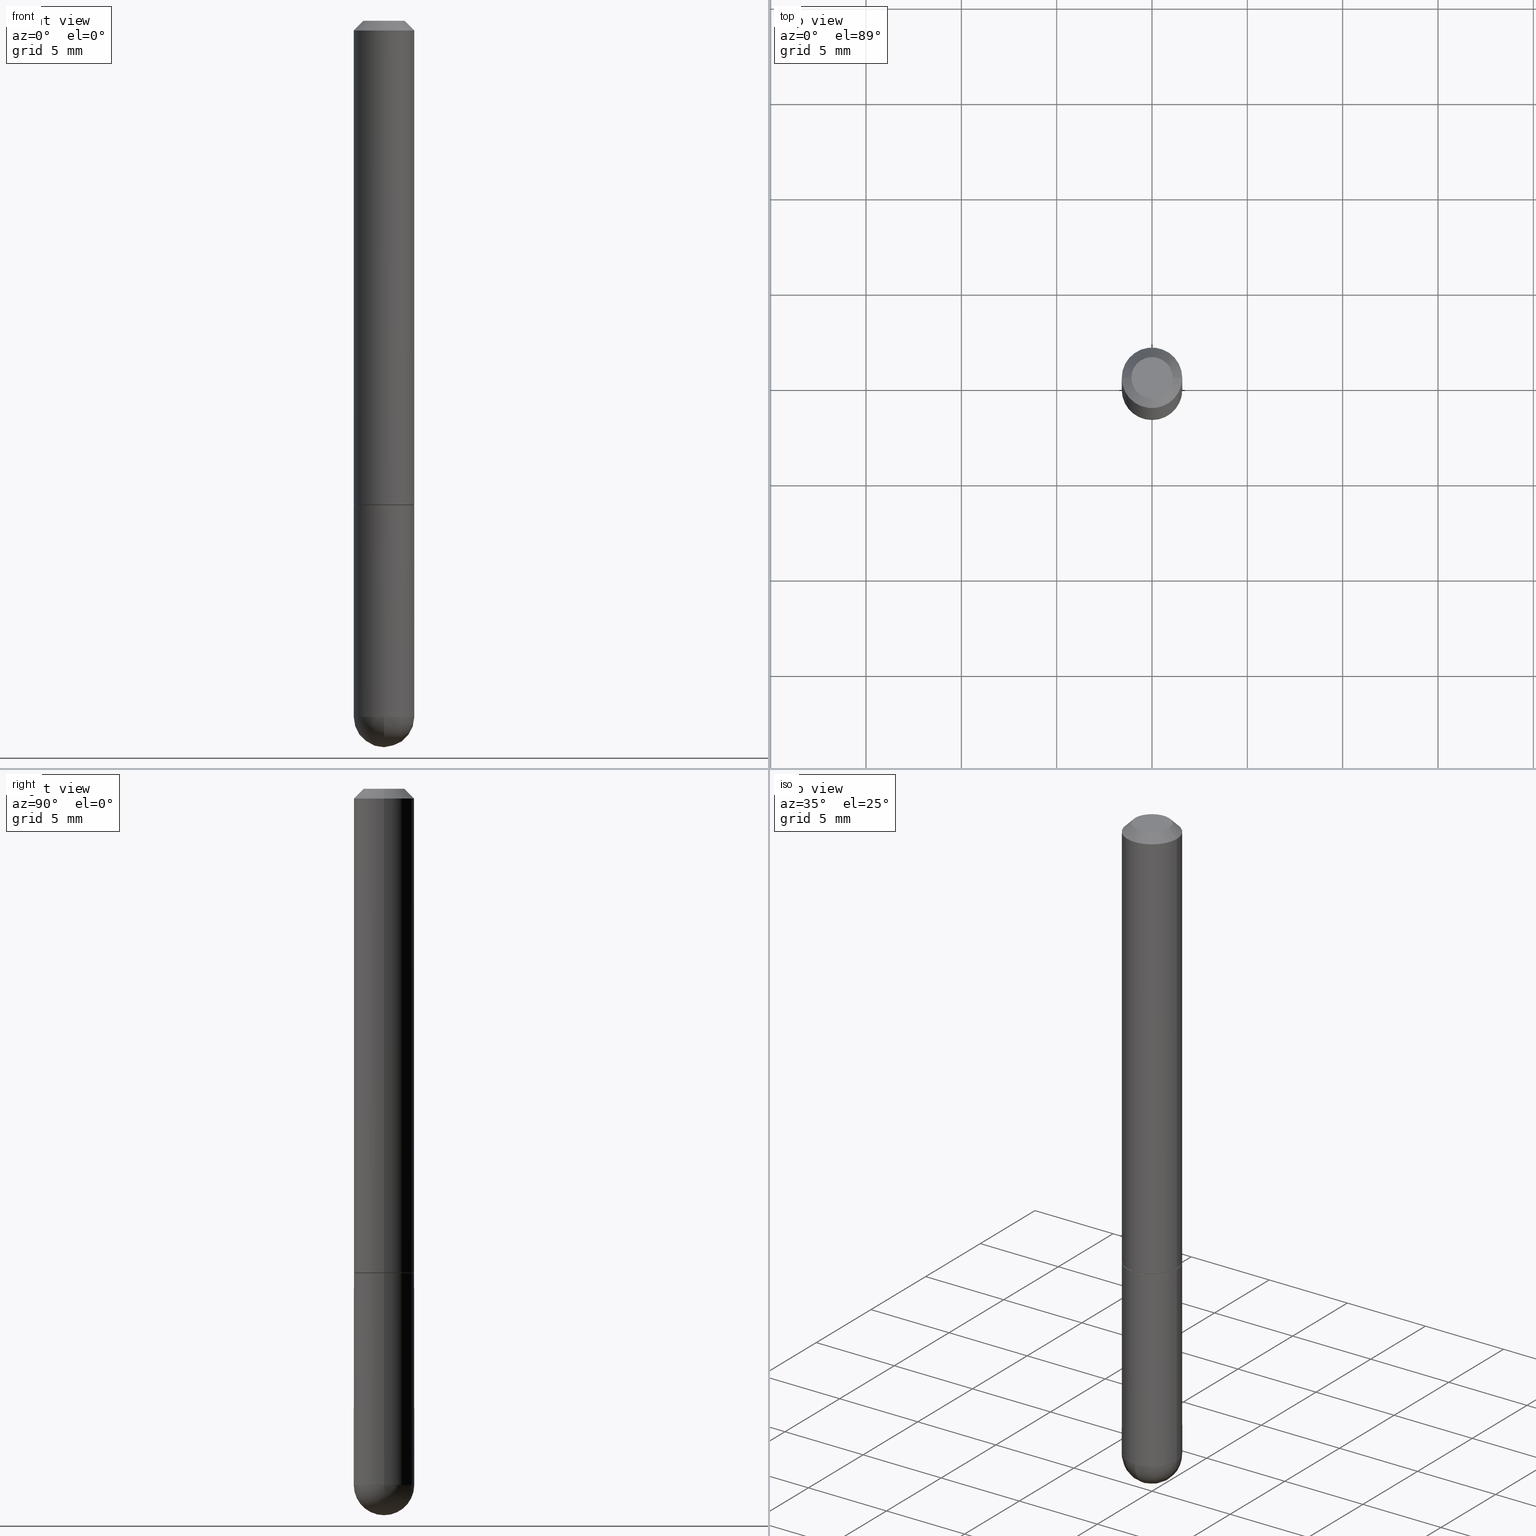
[diagram: canonical four-view strip — front | top / right | iso, engineering-drawing reading convention]
A machine part, canonical four-view strip (front | top / right | iso — engineering-drawing reading convention). The complete STEP part file that produces these views, byte-faithful:
ISO-10303-21;
HEADER;
FILE_DESCRIPTION (( 'STEP AP203' ),
    '1' );
FILE_NAME ('39116.STEP',
    '2024-02-21T19:21:35',
    ( '' ),
    ( '' ),
    'SwSTEP 2.0',
    'SolidWorks 2023',
    '' );
FILE_SCHEMA (( 'CONFIG_CONTROL_DESIGN' ));
ENDSEC;

DATA;
#1 = DIRECTION ( 'NONE',  ( 0.7071067811865465735, -7.319954787623252890E-15, -0.7071067811865484609 ) ) ;
#2 = ORIENTED_EDGE ( 'NONE', *, *, #227, .T. ) ;
#3 = ORGANIZATION ( 'UNSPECIFIED', 'UNSPECIFIED', '' ) ;
#4 = EDGE_LOOP ( 'NONE', ( #288, #234 ) ) ;
#5 = COORDINATED_UNIVERSAL_TIME_OFFSET ( 5, 0, .BEHIND. ) ;
#6 = DIRECTION ( 'NONE',  ( 2.438088387897960049E-29, -3.491481338843145188E-15, -1.000000000000000000 ) ) ;
#7 = PERSON_AND_ORGANIZATION ( #407, #3 ) ;
#8 = FACE_OUTER_BOUND ( 'NONE', #349, .T. ) ;
#9 = AXIS2_PLACEMENT_3D ( 'NONE', #308, #77, #178 ) ;
#10 = APPROVAL_PERSON_ORGANIZATION ( #335, #351, #76 ) ;
#11 = CONICAL_SURFACE ( 'NONE', #388, 0.06149999999999999911, 0.7853981633975507526 ) ;
#12 = CARTESIAN_POINT ( 'NONE',  ( 0.06250000000000004163, -4.364351673553919652E-16, 3.047610484872461972E-30 ) ) ;
#13 = EDGE_CURVE ( 'NONE', #321, #400, #357, .T. ) ;
#14 = CARTESIAN_POINT ( 'NONE',  ( 2.445468806185136877E-29, -3.491481338843145977E-15, -1.000000000000000222 ) ) ;
#15 = PRODUCT ( '39116', '39116', '', ( #246 ) ) ;
#16 = DIRECTION ( 'NONE',  ( 1.000000000000000000, -6.982962677686266711E-15, 4.876176775795935793E-29 ) ) ;
#17 = CIRCLE ( 'NONE', #311, 0.06250000000000000000 ) ;
#18 = AXIS2_PLACEMENT_3D ( 'NONE', #310, #19, #148 ) ;
#19 = DIRECTION ( 'NONE',  ( -2.445468806185136597E-29, 3.491481338843145583E-15, 1.000000000000000000 ) ) ;
#20 = CARTESIAN_POINT ( 'NONE',  ( 0.000000000000000000, 0.000000000000000000, 0.000000000000000000 ) ) ;
#21 = VERTEX_POINT ( 'NONE', #408 ) ;
#22 = LOCAL_TIME ( 14, 21, 35.00000000000000000, #41 ) ;
#23 = ORIENTED_EDGE ( 'NONE', *, *, #215, .T. ) ;
#24 = PRODUCT_RELATED_PRODUCT_CATEGORY ( 'detail', '', ( #15 ) ) ;
#25 = DIRECTION ( 'NONE',  ( 1.000000000000000000, -6.982962677686265922E-15, 4.852736867747402641E-29 ) ) ;
#26 = PLANE ( 'NONE',  #31 ) ;
#27 = DIRECTION ( 'NONE',  ( -2.445468806185136597E-29, 3.491481338843145583E-15, 1.000000000000000000 ) ) ;
#28 = DIRECTION ( 'NONE',  ( -1.000000000000000000, 6.982962677686266711E-15, 0.000000000000000000 ) ) ;
#29 = CONICAL_SURFACE ( 'NONE', #114, 0.06149999999999999911, 0.7853981633975507526 ) ;
#30 = ORIENTED_EDGE ( 'NONE', *, *, #95, .T. ) ;
#31 = AXIS2_PLACEMENT_3D ( 'NONE', #379, #320, #328 ) ;
#32 = DIRECTION ( 'NONE',  ( 6.982962677686265922E-15, 1.000000000000000000, -4.370956789862807739E-15 ) ) ;
#33 = ORIENTED_EDGE ( 'NONE', *, *, #409, .T. ) ;
#34 = CARTESIAN_POINT ( 'NONE',  ( 3.184241630977247611E-29, -5.493186792727071849E-15, -1.437500000000000000 ) ) ;
#35 = ORIENTED_EDGE ( 'NONE', *, *, #284, .T. ) ;
#36 = CARTESIAN_POINT ( 'NONE',  ( 4.364351673554256397E-16, 0.06249999999999480971, -1.437500000000000444 ) ) ;
#37 = ORIENTED_EDGE ( 'NONE', *, *, #65, .T. ) ;
#38 = VECTOR ( 'NONE', #56, 39.37007874015748143 ) ;
#39 = CC_DESIGN_APPROVAL ( #103, ( #144 ) ) ;
#40 = DIRECTION ( 'NONE',  ( -2.445468806185136597E-29, 3.491481338843145583E-15, 1.000000000000000000 ) ) ;
#41 = COORDINATED_UNIVERSAL_TIME_OFFSET ( 5, 0, .BEHIND. ) ;
#42 = ADVANCED_FACE ( 'NONE', ( #97 ), #366, .F. ) ;
#43 = CARTESIAN_POINT ( 'NONE',  ( 2.443023337378951835E-29, -3.487989857504302970E-15, -0.9990000000000002212 ) ) ;
#44 = PERSON_AND_ORGANIZATION_ROLE ( 'design_supplier' ) ;
#45 = CARTESIAN_POINT ( 'NONE',  ( 0.06250000000000013878, -3.924425024859695428E-15, -0.9990000000000002212 ) ) ;
#46 = VECTOR ( 'NONE', #115, 39.37007874015748143 ) ;
#47 = APPROVAL_ROLE ( '' ) ;
#48 =( NAMED_UNIT ( * ) PLANE_ANGLE_UNIT ( ) SI_UNIT ( $, .RADIAN. ) );
#49 = DIRECTION ( 'NONE',  ( -2.445468806185136597E-29, 3.491481338843145583E-15, 1.000000000000000000 ) ) ;
#50 = DIRECTION ( 'NONE',  ( -2.445468806185136597E-29, 3.491481338843145583E-15, 1.000000000000000000 ) ) ;
#51 = EDGE_CURVE ( 'NONE', #217, #195, #212, .T. ) ;
#52 = DIRECTION ( 'NONE',  ( 1.000000000000000000, 0.000000000000000000, 0.000000000000000000 ) ) ;
#53 = CIRCLE ( 'NONE', #395, 0.06250000000000000000 ) ;
#54 = PRODUCT_DEFINITION_FORMATION_WITH_SPECIFIED_SOURCE ( 'ANY', '', #15, .NOT_KNOWN. ) ;
#55 = CARTESIAN_POINT ( 'NONE',  ( 0.000000000000000000, 0.000000000000000000, 0.000000000000000000 ) ) ;
#56 = DIRECTION ( 'NONE',  ( -0.7071067811865465735, 2.468850131082246805E-15, -0.7071067811865484609 ) ) ;
#57 = PERSON_AND_ORGANIZATION_ROLE ( 'design_owner' ) ;
#58 = CARTESIAN_POINT ( 'NONE',  ( -0.06249999999999995143, 3.666055405785281740E-16, -0.02000000000000006981 ) ) ;
#59 = ORIENTED_EDGE ( 'NONE', *, *, #179, .F. ) ;
#60 = AXIS2_PLACEMENT_3D ( 'NONE', #61, #219, #25 ) ;
#61 = CARTESIAN_POINT ( 'NONE',  ( -6.158723344577796643E-45, 8.793024705244639712E-31, 2.518422369159242870E-16 ) ) ;
#62 = APPROVAL_DATE_TIME ( #92, #103 ) ;
#63 = CARTESIAN_POINT ( 'NONE',  ( 3.184241630977247611E-29, -5.493186792727071849E-15, -1.437500000000000000 ) ) ;
#64 = ORIENTED_EDGE ( 'NONE', *, *, #221, .T. ) ;
#65 = EDGE_CURVE ( 'NONE', #195, #160, #53, .T. ) ;
#66 = EDGE_LOOP ( 'NONE', ( #278, #122, #380, #202 ) ) ;
#67 = DIRECTION ( 'NONE',  ( -0.7071067811866199593, 7.493145998870616062E-15, 0.7071067811864750752 ) ) ;
#68 = CC_DESIGN_APPROVAL ( #351, ( #54 ) ) ;
#69 = EDGE_LOOP ( 'NONE', ( #290, #2, #237, #256 ) ) ;
#70 = ORIENTED_EDGE ( 'NONE', *, *, #65, .F. ) ;
#71 = SPHERICAL_SURFACE ( 'NONE', #348, 0.06250000000000018041 ) ;
#72 = ORIENTED_EDGE ( 'NONE', *, *, #215, .F. ) ;
#73 = DESIGN_CONTEXT ( 'detailed design', #358, 'design' ) ;
#74 = CARTESIAN_POINT ( 'NONE',  ( 4.890937612370289799E-31, -6.982962677686315028E-17, -0.02000000000000006981 ) ) ;
#75 = VECTOR ( 'NONE', #108, 39.37007874015748143 ) ;
#76 = APPROVAL_ROLE ( '' ) ;
#77 = DIRECTION ( 'NONE',  ( -2.445468806185136597E-29, 3.491481338843145583E-15, 1.000000000000000000 ) ) ;
#78 = EDGE_CURVE ( 'NONE', #21, #377, #133, .T. ) ;
#79 = DATE_AND_TIME ( #354, #94 ) ;
#80 = CARTESIAN_POINT ( 'NONE',  ( 0.000000000000000000, 0.000000000000000000, 0.000000000000000000 ) ) ;
#81 = PERSON_AND_ORGANIZATION ( #407, #3 ) ;
#82 = CYLINDRICAL_SURFACE ( 'NONE', #218, 0.06249999999999997224 ) ;
#83 = CIRCLE ( 'NONE', #188, 0.06250000000000018041 ) ;
#84 = LOCAL_TIME ( 14, 21, 35.00000000000000000, #228 ) ;
#85 = EDGE_CURVE ( 'NONE', #127, #383, #303, .T. ) ;
#86 = CARTESIAN_POINT ( 'NONE',  ( 2.967759138016640869E-16, 0.04249999999999968386, -2.246683844287043922E-17 ) ) ;
#87 = EDGE_CURVE ( 'NONE', #292, #385, #83, .T. ) ;
#88 = VECTOR ( 'NONE', #346, 39.37007874015748143 ) ;
#89 = DIRECTION ( 'NONE',  ( -2.445468806185136597E-29, 3.491481338843145583E-15, 1.000000000000000000 ) ) ;
#90 = VERTEX_POINT ( 'NONE', #145 ) ;
#91 = CARTESIAN_POINT ( 'NONE',  ( 2.445468806185136877E-29, -3.491481338843145977E-15, -1.000000000000000222 ) ) ;
#92 = DATE_AND_TIME ( #98, #84 ) ;
#93 = AXIS2_PLACEMENT_3D ( 'NONE', #355, #332, #171 ) ;
#94 = LOCAL_TIME ( 14, 21, 35.00000000000000000, #5 ) ;
#95 = EDGE_CURVE ( 'NONE', #400, #217, #287, .T. ) ;
#96 = LINE ( 'NONE', #233, #369 ) ;
#97 = FACE_OUTER_BOUND ( 'NONE', #220, .T. ) ;
#98 = CALENDAR_DATE ( 2024, 21, 2 ) ;
#99 = ORIENTED_EDGE ( 'NONE', *, *, #403, .T. ) ;
#100 = AXIS2_PLACEMENT_3D ( 'NONE', #362, #211, #243 ) ;
#101 = CARTESIAN_POINT ( 'NONE',  ( 4.890937612370289799E-31, -6.982962677686315028E-17, -0.02000000000000006981 ) ) ;
#102 = ORIENTED_EDGE ( 'NONE', *, *, #312, .F. ) ;
#103 = APPROVAL ( #123, 'UNSPECIFIED' ) ;
#104 = FACE_OUTER_BOUND ( 'NONE', #276, .T. ) ;
#105 = VERTEX_POINT ( 'NONE', #264 ) ;
#106 = CALENDAR_DATE ( 2024, 21, 2 ) ;
#107 = ORIENTED_EDGE ( 'NONE', *, *, #95, .F. ) ;
#108 = DIRECTION ( 'NONE',  ( -2.445468806185136877E-29, 3.491481338843145188E-15, 1.000000000000000000 ) ) ;
#109 = EDGE_CURVE ( 'NONE', #105, #185, #139, .T. ) ;
#110 = CC_DESIGN_SECURITY_CLASSIFICATION ( #331, ( #54 ) ) ;
#111 = CARTESIAN_POINT ( 'NONE',  ( 0.06250000000000000000, -3.927916506198537646E-15, -1.000000000000000222 ) ) ;
#112 = DIRECTION ( 'NONE',  ( -2.445468806185136597E-29, 3.491481338843145583E-15, 1.000000000000000000 ) ) ;
#113 = DIRECTION ( 'NONE',  ( -2.445468806185136877E-29, 3.491481338843145188E-15, 1.000000000000000000 ) ) ;
#114 = AXIS2_PLACEMENT_3D ( 'NONE', #402, #89, #182 ) ;
#115 = DIRECTION ( 'NONE',  ( -2.445468806185136877E-29, 3.491481338843145188E-15, 1.000000000000000000 ) ) ;
#116 = CYLINDRICAL_SURFACE ( 'NONE', #158, 0.06249999999999997224 ) ;
#117 = ADVANCED_FACE ( 'NONE', ( #272 ), #336, .T. ) ;
#118 = ORIENTED_EDGE ( 'NONE', *, *, #372, .F. ) ;
#119 = ORIENTED_EDGE ( 'NONE', *, *, #51, .T. ) ;
#120 = APPLICATION_PROTOCOL_DEFINITION ( 'international standard', 'config_control_design', 1994, #358 ) ;
#121 = DIRECTION ( 'NONE',  ( -2.445468806185136597E-29, 3.491481338843145583E-15, 1.000000000000000000 ) ) ;
#122 = ORIENTED_EDGE ( 'NONE', *, *, #206, .T. ) ;
#123 = APPROVAL_STATUS ( 'not_yet_approved' ) ;
#124 = DIRECTION ( 'NONE',  ( 2.445468806185136597E-29, -3.491481338843145583E-15, -1.000000000000000000 ) ) ;
#125 = LOCAL_TIME ( 14, 21, 35.00000000000000000, #269 ) ;
#126 = DIRECTION ( 'NONE',  ( 1.000000000000000000, -6.982962677686266711E-15, 0.000000000000000000 ) ) ;
#127 = VERTEX_POINT ( 'NONE', #45 ) ;
#128 = LINE ( 'NONE', #168, #295 ) ;
#129 = EDGE_LOOP ( 'NONE', ( #324, #253, #30, #119, #205 ) ) ;
#130 = EDGE_CURVE ( 'NONE', #127, #21, #339, .T. ) ;
#131 = SPHERICAL_SURFACE ( 'NONE', #232, 0.06250000000000018041 ) ;
#132 = EDGE_LOOP ( 'NONE', ( #226, #319, #156, #102 ) ) ;
#133 = CIRCLE ( 'NONE', #314, 0.06249999999999995143 ) ;
#134 = CARTESIAN_POINT ( 'NONE',  ( -0.06250000000000013878, -1.334820532290516771E-15, -0.9990000000000002212 ) ) ;
#135 = ORIENTED_EDGE ( 'NONE', *, *, #312, .T. ) ;
#136 = PERSON_AND_ORGANIZATION_ROLE ( 'creator' ) ;
#137 = ORIENTED_EDGE ( 'NONE', *, *, #390, .F. ) ;
#138 = CARTESIAN_POINT ( 'NONE',  ( 2.445468806185136877E-29, -3.491481338843145977E-15, -1.000000000000000222 ) ) ;
#139 = CIRCLE ( 'NONE', #252, 0.06149999999999999911 ) ;
#140 = DIRECTION ( 'NONE',  ( 1.000000000000000000, -6.982962677686265922E-15, 4.883557194083112340E-29 ) ) ;
#141 = CONICAL_SURFACE ( 'NONE', #213, 0.06249999999999995143, 0.7853981633974469467 ) ;
#142 = CARTESIAN_POINT ( 'NONE',  ( -0.06250000000000004163, 4.440892098500629120E-16, -3.074334431409318216E-30 ) ) ;
#143 = CARTESIAN_POINT ( 'NONE',  ( 2.445468806185136877E-29, -3.491481338843145977E-15, -1.000000000000000222 ) ) ;
#144 = PRODUCT_DEFINITION ( 'UNKNOWN', '', #54, #73 ) ;
#145 = CARTESIAN_POINT ( 'NONE',  ( 0.04249999999999968386, -3.950909582714352654E-16, 2.518422369159267029E-16 ) ) ;
#146 = CIRCLE ( 'NONE', #100, 0.06250000000000018041 ) ;
#147 = APPROVAL_PERSON_ORGANIZATION ( #81, #340, #47 ) ;
#148 = DIRECTION ( 'NONE',  ( 1.000000000000000000, -6.982962677686268288E-15, 0.000000000000000000 ) ) ;
#149 = ADVANCED_FACE ( 'NONE', ( #8 ), #82, .T. ) ;
#150 = DIRECTION ( 'NONE',  ( -2.445468806185136597E-29, 3.491481338843145583E-15, 1.000000000000000000 ) ) ;
#151 = EDGE_LOOP ( 'NONE', ( #352, #64, #298, #162 ) ) ;
#152 = ORIENTED_EDGE ( 'NONE', *, *, #241, .T. ) ;
#153 = VECTOR ( 'NONE', #113, 39.37007874015748143 ) ;
#154 = PERSON_AND_ORGANIZATION ( #407, #3 ) ;
#155 = DIRECTION ( 'NONE',  ( -2.445468806185136877E-29, 3.491481338843145188E-15, 1.000000000000000000 ) ) ;
#156 = ORIENTED_EDGE ( 'NONE', *, *, #85, .F. ) ;
#157 = AXIS2_PLACEMENT_3D ( 'NONE', #334, #245, #266 ) ;
#158 = AXIS2_PLACEMENT_3D ( 'NONE', #20, #150, #275 ) ;
#159 = CYLINDRICAL_SURFACE ( 'NONE', #365, 0.06250000000000004163 ) ;
#160 = VERTEX_POINT ( 'NONE', #360 ) ;
#161 = DIRECTION ( 'NONE',  ( 1.000000000000000000, -6.982962677686266711E-15, 4.876176775795935793E-29 ) ) ;
#162 = ORIENTED_EDGE ( 'NONE', *, *, #130, .F. ) ;
#163 = ADVANCED_BREP_SHAPE_REPRESENTATION ( '39116', ( #274, #406, #239 ), #197 ) ;
#164 = FACE_OUTER_BOUND ( 'NONE', #69, .T. ) ;
#165 = ORIENTED_EDGE ( 'NONE', *, *, #241, .F. ) ;
#166 = APPROVAL_STATUS ( 'not_yet_approved' ) ;
#167 = AXIS2_PLACEMENT_3D ( 'NONE', #143, #40, #240 ) ;
#168 = CARTESIAN_POINT ( 'NONE',  ( 0.06249999999999995143, -4.986107516375835278E-16, -0.02000000000000006981 ) ) ;
#169 = CIRCLE ( 'NONE', #60, 0.04249999999999968386 ) ;
#170 = ORIENTED_EDGE ( 'NONE', *, *, #179, .T. ) ;
#171 = DIRECTION ( 'NONE',  ( 1.000000000000000000, -6.982962677686265922E-15, 4.852736867747402641E-29 ) ) ;
#172 = CARTESIAN_POINT ( 'NONE',  ( 0.000000000000000000, 0.000000000000000000, 0.000000000000000000 ) ) ;
#173 = DATE_AND_TIME ( #106, #125 ) ;
#174 = AXIS2_PLACEMENT_3D ( 'NONE', #43, #112, #301 ) ;
#175 = DIRECTION ( 'NONE',  ( 1.000000000000000000, -6.982962677686266711E-15, 0.000000000000000000 ) ) ;
#176 = COORDINATED_UNIVERSAL_TIME_OFFSET ( 5, 0, .BEHIND. ) ;
#177 =( NAMED_UNIT ( * ) SI_UNIT ( $, .STERADIAN. ) SOLID_ANGLE_UNIT ( ) );
#178 = DIRECTION ( 'NONE',  ( 1.000000000000000000, -6.982962677686268288E-15, 0.000000000000000000 ) ) ;
#179 = EDGE_CURVE ( 'NONE', #90, #410, #330, .T. ) ;
#180 = CC_DESIGN_PERSON_AND_ORGANIZATION_ASSIGNMENT ( #7, #294, ( #54 ) ) ;
#181 = CARTESIAN_POINT ( 'NONE',  ( 3.515361408891134418E-29, -5.019004424587023131E-15, -1.437500000000000222 ) ) ;
#182 = DIRECTION ( 'NONE',  ( 1.000000000000000000, -6.982962677686269866E-15, 0.000000000000000000 ) ) ;
#183 = EDGE_CURVE ( 'NONE', #185, #105, #309, .T. ) ;
#184 = DIRECTION ( 'NONE',  ( 1.000000000000000000, -6.982962677686262766E-15, 0.000000000000000000 ) ) ;
#185 = VERTEX_POINT ( 'NONE', #270 ) ;
#186 = CARTESIAN_POINT ( 'NONE',  ( 2.445468806185136877E-29, -3.491481338843145977E-15, -1.000000000000000222 ) ) ;
#187 = FACE_OUTER_BOUND ( 'NONE', #132, .T. ) ;
#188 = AXIS2_PLACEMENT_3D ( 'NONE', #214, #140, #338 ) ;
#189 = AXIS2_PLACEMENT_3D ( 'NONE', #285, #411, #126 ) ;
#190 = CC_DESIGN_PERSON_AND_ORGANIZATION_ASSIGNMENT ( #391, #44, ( #54 ) ) ;
#191 = CC_DESIGN_PERSON_AND_ORGANIZATION_ASSIGNMENT ( #368, #57, ( #15 ) ) ;
#192 = CARTESIAN_POINT ( 'NONE',  ( 0.000000000000000000, 0.000000000000000000, 0.000000000000000000 ) ) ;
#193 = ORIENTED_EDGE ( 'NONE', *, *, #51, .F. ) ;
#194 = LENGTH_MEASURE_WITH_UNIT ( LENGTH_MEASURE( 0.02539999999999999897 ), #225 );
#195 = VERTEX_POINT ( 'NONE', #111 ) ;
#196 = AXIS2_PLACEMENT_3D ( 'NONE', #172, #208, #307 ) ;
#197 =( GEOMETRIC_REPRESENTATION_CONTEXT ( 3 ) GLOBAL_UNCERTAINTY_ASSIGNED_CONTEXT ( ( #198 ) ) GLOBAL_UNIT_ASSIGNED_CONTEXT ( ( #255, #48, #177 ) ) REPRESENTATION_CONTEXT ( 'NONE', 'WORKASPACE' ) );
#198 = UNCERTAINTY_MEASURE_WITH_UNIT (LENGTH_MEASURE( 1.000000000000000082E-05 ), #255, 'distance_accuracy_value', 'NONE');
#199 = DIRECTION ( 'NONE',  ( 6.982962677686265922E-15, 1.000000000000000000, -4.370956789862807739E-15 ) ) ;
#200 = ORIENTED_EDGE ( 'NONE', *, *, #390, .T. ) ;
#201 = FACE_OUTER_BOUND ( 'NONE', #261, .T. ) ;
#202 = ORIENTED_EDGE ( 'NONE', *, *, #409, .F. ) ;
#203 = DATE_TIME_ROLE ( 'creation_date' ) ;
#204 = DIRECTION ( 'NONE',  ( 2.445468806185136597E-29, -3.491481338843145583E-15, -1.000000000000000000 ) ) ;
#205 = ORIENTED_EDGE ( 'NONE', *, *, #284, .F. ) ;
#206 = EDGE_CURVE ( 'NONE', #383, #127, #244, .T. ) ;
#207 = CALENDAR_DATE ( 2024, 21, 2 ) ;
#208 = DIRECTION ( 'NONE',  ( -2.445468806185136597E-29, 3.491481338843145583E-15, 1.000000000000000000 ) ) ;
#209 = PERSON_AND_ORGANIZATION_ROLE ( 'classification_officer' ) ;
#210 = CARTESIAN_POINT ( 'NONE',  ( 0.06249999999999997224, -4.364351673553914722E-16, 3.047610484872458469E-30 ) ) ;
#211 = DIRECTION ( 'NONE',  ( -1.000000000000000000, 7.105427357601001070E-15, -4.926315508542082329E-29 ) ) ;
#212 = LINE ( 'NONE', #210, #153 ) ;
#213 = AXIS2_PLACEMENT_3D ( 'NONE', #101, #204, #28 ) ;
#214 = CARTESIAN_POINT ( 'NONE',  ( 3.184241630977247611E-29, -5.493186792727071849E-15, -1.437500000000000000 ) ) ;
#215 = EDGE_CURVE ( 'NONE', #217, #385, #222, .T. ) ;
#216 = LINE ( 'NONE', #373, #88 ) ;
#217 = VERTEX_POINT ( 'NONE', #305 ) ;
#218 = AXIS2_PLACEMENT_3D ( 'NONE', #80, #394, #16 ) ;
#219 = DIRECTION ( 'NONE',  ( -2.445468806185136597E-29, 3.491481338843145583E-15, 1.000000000000000000 ) ) ;
#220 = EDGE_LOOP ( 'NONE', ( #412, #170 ) ) ;
#221 = EDGE_CURVE ( 'NONE', #383, #377, #389, .T. ) ;
#222 = CIRCLE ( 'NONE', #231, 0.06249999999999995143 ) ;
#223 = CARTESIAN_POINT ( 'NONE',  ( -0.06249999999999995143, 3.666055405785281740E-16, -0.02000000000000006981 ) ) ;
#224 = DIMENSIONAL_EXPONENTS ( 1.000000000000000000, 0.000000000000000000, 0.000000000000000000, 0.000000000000000000, 0.000000000000000000, 0.000000000000000000, 0.000000000000000000 ) ;
#225 =( LENGTH_UNIT ( ) NAMED_UNIT ( * ) SI_UNIT ( $, .METRE. ) );
#226 = ORIENTED_EDGE ( 'NONE', *, *, #109, .T. ) ;
#227 = EDGE_CURVE ( 'NONE', #292, #400, #146, .T. ) ;
#228 = COORDINATED_UNIVERSAL_TIME_OFFSET ( 5, 0, .BEHIND. ) ;
#229 = DIRECTION ( 'NONE',  ( -1.000000000000000000, 6.982962677686265922E-15, -4.883557194083112340E-29 ) ) ;
#230 = ORIENTED_EDGE ( 'NONE', *, *, #183, .T. ) ;
#231 = AXIS2_PLACEMENT_3D ( 'NONE', #181, #397, #392 ) ;
#232 = AXIS2_PLACEMENT_3D ( 'NONE', #63, #323, #32 ) ;
#233 = CARTESIAN_POINT ( 'NONE',  ( -0.06249999999999997224, 4.440892098500624190E-16, -3.074334431409315063E-30 ) ) ;
#234 = ORIENTED_EDGE ( 'NONE', *, *, #183, .F. ) ;
#235 = ORIENTED_EDGE ( 'NONE', *, *, #87, .T. ) ;
#236 = SHAPE_DEFINITION_REPRESENTATION ( #341, #163 ) ;
#237 = ORIENTED_EDGE ( 'NONE', *, *, #13, .F. ) ;
#238 = APPLICATION_PROTOCOL_DEFINITION ( 'international standard', 'config_control_design', 1994, #296 ) ;
#239 = AXIS2_PLACEMENT_3D ( 'NONE', #55, #370, #52 ) ;
#240 = DIRECTION ( 'NONE',  ( 1.000000000000000000, -6.982962677686269866E-15, 0.000000000000000000 ) ) ;
#241 = EDGE_CURVE ( 'NONE', #410, #377, #364, .T. ) ;
#242 = DIRECTION ( 'NONE',  ( 1.000000000000000000, -6.982962677686262766E-15, 0.000000000000000000 ) ) ;
#243 = DIRECTION ( 'NONE',  ( -7.105427357601001859E-15, -1.000000000000000000, 0.000000000000000000 ) ) ;
#244 = CIRCLE ( 'NONE', #157, 0.06250000000000013878 ) ;
#245 = DIRECTION ( 'NONE',  ( -2.445468806185136597E-29, 3.491481338843145583E-15, 1.000000000000000000 ) ) ;
#246 = MECHANICAL_CONTEXT ( 'NONE', #296, 'mechanical' ) ;
#247 = DIRECTION ( 'NONE',  ( -2.445468806185136597E-29, 3.491481338843145583E-15, 1.000000000000000000 ) ) ;
#248 = CARTESIAN_POINT ( 'NONE',  ( -0.06249999999999995143, -3.811153671865022332E-15, -1.437500000000000222 ) ) ;
#249 = ORIENTED_EDGE ( 'NONE', *, *, #322, .T. ) ;
#250 = CARTESIAN_POINT ( 'NONE',  ( 3.339755826017505008E-29, -5.707577355157432999E-15, -1.500000000000000222 ) ) ;
#251 = FACE_OUTER_BOUND ( 'NONE', #350, .T. ) ;
#252 = AXIS2_PLACEMENT_3D ( 'NONE', #138, #49, #387 ) ;
#253 = ORIENTED_EDGE ( 'NONE', *, *, #13, .T. ) ;
#254 = APPROVAL_ROLE ( '' ) ;
#255 =( CONVERSION_BASED_UNIT ( 'INCH', #194 ) LENGTH_UNIT ( ) NAMED_UNIT ( #224 ) );
#256 = ORIENTED_EDGE ( 'NONE', *, *, #322, .F. ) ;
#257 = CARTESIAN_POINT ( 'NONE',  ( -0.04249999999999968386, 3.316907271900965742E-16, 2.518422369159220683E-16 ) ) ;
#258 = ORIENTED_EDGE ( 'NONE', *, *, #206, .F. ) ;
#259 = ADVANCED_FACE ( 'NONE', ( #277 ), #345, .F. ) ;
#260 = CLOSED_SHELL ( 'NONE', ( #149, #378, #344, #363, #337 ) ) ;
#261 = EDGE_LOOP ( 'NONE', ( #371, #235, #72, #107 ) ) ;
#262 = APPROVAL_STATUS ( 'not_yet_approved' ) ;
#263 = ORIENTED_EDGE ( 'NONE', *, *, #313, .F. ) ;
#264 = CARTESIAN_POINT ( 'NONE',  ( 0.06149999999999999911, -3.920933543520851632E-15, -1.000000000000000222 ) ) ;
#265 = LOCAL_TIME ( 14, 21, 35.00000000000000000, #176 ) ;
#266 = DIRECTION ( 'NONE',  ( 1.000000000000000000, -6.982962677686270655E-15, 0.000000000000000000 ) ) ;
#267 = CC_DESIGN_PERSON_AND_ORGANIZATION_ASSIGNMENT ( #361, #209, ( #331 ) ) ;
#268 = DIRECTION ( 'NONE',  ( -2.445468806185136597E-29, 3.491481338843145583E-15, 1.000000000000000000 ) ) ;
#269 = COORDINATED_UNIVERSAL_TIME_OFFSET ( 5, 0, .BEHIND. ) ;
#270 = CARTESIAN_POINT ( 'NONE',  ( -0.06149999999999999911, -3.049199102002462361E-15, -1.000000000000000222 ) ) ;
#271 = AXIS2_PLACEMENT_3D ( 'NONE', #91, #316, #273 ) ;
#272 = FACE_OUTER_BOUND ( 'NONE', #151, .T. ) ;
#273 = DIRECTION ( 'NONE',  ( 1.000000000000000000, -6.982962677686265922E-15, 4.876176775795935793E-29 ) ) ;
#274 = MANIFOLD_SOLID_BREP ( 'Body-Move/Copy2[1]', #260 ) ;
#275 = DIRECTION ( 'NONE',  ( 1.000000000000000000, -6.982962677686266711E-15, 4.876176775795935793E-29 ) ) ;
#276 = EDGE_LOOP ( 'NONE', ( #137, #263, #152, #33 ) ) ;
#277 = FACE_OUTER_BOUND ( 'NONE', #4, .T. ) ;
#278 = ORIENTED_EDGE ( 'NONE', *, *, #221, .F. ) ;
#279 = ADVANCED_FACE ( 'NONE', ( #187 ), #29, .T. ) ;
#280 = CIRCLE ( 'NONE', #189, 0.06249999999999995143 ) ;
#281 = CC_DESIGN_DATE_AND_TIME_ASSIGNMENT ( #386, #306, ( #331 ) ) ;
#282 = PERSON_AND_ORGANIZATION ( #407, #3 ) ;
#283 = FACE_OUTER_BOUND ( 'NONE', #381, .T. ) ;
#284 = EDGE_CURVE ( 'NONE', #160, #195, #17, .T. ) ;
#285 = CARTESIAN_POINT ( 'NONE',  ( 4.890937612370289799E-31, -6.982962677686315028E-17, -0.02000000000000006981 ) ) ;
#286 = DIRECTION ( 'NONE',  ( 1.000000000000000000, -6.982962677686268288E-15, 0.000000000000000000 ) ) ;
#287 = CIRCLE ( 'NONE', #9, 0.06249999999999995143 ) ;
#288 = ORIENTED_EDGE ( 'NONE', *, *, #109, .F. ) ;
#289 = DIRECTION ( 'NONE',  ( -1.000000000000000000, 6.982962677686266711E-15, 0.000000000000000000 ) ) ;
#290 = ORIENTED_EDGE ( 'NONE', *, *, #87, .F. ) ;
#291 = LINE ( 'NONE', #325, #315 ) ;
#292 = VERTEX_POINT ( 'NONE', #250 ) ;
#293 = CC_DESIGN_DATE_AND_TIME_ASSIGNMENT ( #359, #203, ( #144 ) ) ;
#294 = PERSON_AND_ORGANIZATION_ROLE ( 'creator' ) ;
#295 = VECTOR ( 'NONE', #1, 39.37007874015748143 ) ;
#296 = APPLICATION_CONTEXT ( 'configuration controlled 3d designs of mechanical parts and assemblies' ) ;
#297 = DIRECTION ( 'NONE',  ( -2.445468806185136597E-29, 3.491481338843145583E-15, 1.000000000000000000 ) ) ;
#298 = ORIENTED_EDGE ( 'NONE', *, *, #78, .F. ) ;
#299 = DIRECTION ( 'NONE',  ( -1.000000000000000000, 6.982962677686265922E-15, -4.876176775795935793E-29 ) ) ;
#300 = CALENDAR_DATE ( 2024, 21, 2 ) ;
#301 = DIRECTION ( 'NONE',  ( 1.000000000000000000, -6.982962677686270655E-15, 0.000000000000000000 ) ) ;
#302 = APPROVAL_DATE_TIME ( #173, #340 ) ;
#303 = CIRCLE ( 'NONE', #174, 0.06250000000000013878 ) ;
#304 = CONICAL_SURFACE ( 'NONE', #401, 0.06249999999999995143, 0.7853981633974469467 ) ;
#305 = CARTESIAN_POINT ( 'NONE',  ( 0.06249999999999995143, -4.691678049070475040E-15, -1.437500000000000222 ) ) ;
#306 = DATE_TIME_ROLE ( 'classification_date' ) ;
#307 = DIRECTION ( 'NONE',  ( 1.000000000000000000, -6.982962677686266711E-15, 4.876176775795935793E-29 ) ) ;
#308 = CARTESIAN_POINT ( 'NONE',  ( 3.515361408891134418E-29, -5.019004424587023131E-15, -1.437500000000000222 ) ) ;
#309 = CIRCLE ( 'NONE', #167, 0.06149999999999999911 ) ;
#310 = CARTESIAN_POINT ( 'NONE',  ( 3.515361408891134418E-29, -5.019004424587023131E-15, -1.437500000000000222 ) ) ;
#311 = AXIS2_PLACEMENT_3D ( 'NONE', #186, #121, #184 ) ;
#312 = EDGE_CURVE ( 'NONE', #105, #127, #216, .T. ) ;
#313 = EDGE_CURVE ( 'NONE', #410, #90, #169, .T. ) ;
#314 = AXIS2_PLACEMENT_3D ( 'NONE', #74, #50, #175 ) ;
#315 = VECTOR ( 'NONE', #67, 39.37007874015748143 ) ;
#316 = DIRECTION ( 'NONE',  ( -2.438088387897960049E-29, 3.491481338843145188E-15, 1.000000000000000000 ) ) ;
#317 = ADVANCED_FACE ( 'NONE', ( #283 ), #11, .T. ) ;
#318 = CARTESIAN_POINT ( 'NONE',  ( -4.440892098500294840E-16, -0.06250000000000532907, -1.437500000000000000 ) ) ;
#319 = ORIENTED_EDGE ( 'NONE', *, *, #372, .T. ) ;
#320 = DIRECTION ( 'NONE',  ( 2.438088387897960049E-29, -3.491481338843145188E-15, -1.000000000000000000 ) ) ;
#321 = VERTEX_POINT ( 'NONE', #248 ) ;
#322 = EDGE_CURVE ( 'NONE', #385, #321, #343, .T. ) ;
#323 = DIRECTION ( 'NONE',  ( -1.000000000000000000, 6.982962677686265922E-15, -4.883557194083112340E-29 ) ) ;
#324 = ORIENTED_EDGE ( 'NONE', *, *, #403, .F. ) ;
#325 = CARTESIAN_POINT ( 'NONE',  ( -0.06149999999999999911, -3.054497556350684369E-15, -1.000000000000000222 ) ) ;
#326 = ORIENTED_EDGE ( 'NONE', *, *, #78, .T. ) ;
#327 = CC_DESIGN_PERSON_AND_ORGANIZATION_ASSIGNMENT ( #154, #136, ( #144 ) ) ;
#328 = DIRECTION ( 'NONE',  ( -1.000000000000000000, 6.982962677686265922E-15, -4.876176775795935793E-29 ) ) ;
#329 = EDGE_LOOP ( 'NONE', ( #37, #35 ) ) ;
#330 = CIRCLE ( 'NONE', #93, 0.04249999999999968386 ) ;
#331 = SECURITY_CLASSIFICATION ( '', '', #333 ) ;
#332 = DIRECTION ( 'NONE',  ( -2.445468806185136597E-29, 3.491481338843145583E-15, 1.000000000000000000 ) ) ;
#333 = SECURITY_CLASSIFICATION_LEVEL ( 'unclassified' ) ;
#334 = CARTESIAN_POINT ( 'NONE',  ( 2.443023337378951835E-29, -3.487989857504302970E-15, -0.9990000000000002212 ) ) ;
#335 = PERSON_AND_ORGANIZATION ( #407, #3 ) ;
#336 = CYLINDRICAL_SURFACE ( 'NONE', #196, 0.06250000000000004163 ) ;
#337 = ADVANCED_FACE ( 'NONE', ( #399 ), #116, .T. ) ;
#338 = DIRECTION ( 'NONE',  ( 6.982962677686266711E-15, 1.000000000000000000, 0.000000000000000000 ) ) ;
#339 = LINE ( 'NONE', #12, #75 ) ;
#340 = APPROVAL ( #262, 'UNSPECIFIED' ) ;
#341 = PRODUCT_DEFINITION_SHAPE ( 'NONE', 'NONE',  #144 ) ;
#342 = CLOSED_SHELL ( 'NONE', ( #279, #117, #393, #356, #398, #317, #259, #42 ) ) ;
#343 = CIRCLE ( 'NONE', #18, 0.06249999999999995143 ) ;
#344 = ADVANCED_FACE ( 'NONE', ( #201 ), #71, .T. ) ;
#345 = PLANE ( 'NONE',  #271 ) ;
#346 = DIRECTION ( 'NONE',  ( 0.7071067811866199593, -2.468850131083015945E-15, 0.7071067811864750752 ) ) ;
#347 = AXIS2_PLACEMENT_3D ( 'NONE', #353, #27, #286 ) ;
#348 = AXIS2_PLACEMENT_3D ( 'NONE', #34, #229, #199 ) ;
#349 = EDGE_LOOP ( 'NONE', ( #249, #99, #70, #193, #23 ) ) ;
#350 = EDGE_LOOP ( 'NONE', ( #59, #200, #326, #165 ) ) ;
#351 = APPROVAL ( #166, 'UNSPECIFIED' ) ;
#352 = ORIENTED_EDGE ( 'NONE', *, *, #85, .T. ) ;
#353 = CARTESIAN_POINT ( 'NONE',  ( 3.515361408891134418E-29, -5.019004424587023131E-15, -1.437500000000000222 ) ) ;
#354 = CALENDAR_DATE ( 2024, 21, 2 ) ;
#355 = CARTESIAN_POINT ( 'NONE',  ( -6.158723344577796643E-45, 8.793024705244639712E-31, 2.518422369159242870E-16 ) ) ;
#356 = ADVANCED_FACE ( 'NONE', ( #104 ), #304, .T. ) ;
#357 = CIRCLE ( 'NONE', #347, 0.06249999999999995143 ) ;
#358 = APPLICATION_CONTEXT ( 'configuration controlled 3d designs of mechanical parts and assemblies' ) ;
#359 = DATE_AND_TIME ( #300, #265 ) ;
#360 = CARTESIAN_POINT ( 'NONE',  ( -0.06250000000000000000, -3.811153671865022332E-15, -1.000000000000000222 ) ) ;
#361 = PERSON_AND_ORGANIZATION ( #407, #3 ) ;
#362 = CARTESIAN_POINT ( 'NONE',  ( 3.184241630977247611E-29, -5.493186792727071849E-15, -1.437500000000000000 ) ) ;
#363 = ADVANCED_FACE ( 'NONE', ( #405 ), #26, .F. ) ;
#364 = LINE ( 'NONE', #58, #38 ) ;
#365 = AXIS2_PLACEMENT_3D ( 'NONE', #192, #297, #161 ) ;
#366 = PLANE ( 'NONE',  #375 ) ;
#367 = DIRECTION ( 'NONE',  ( 1.000000000000000000, -6.982962677686269866E-15, 0.000000000000000000 ) ) ;
#368 = PERSON_AND_ORGANIZATION ( #407, #3 ) ;
#369 = VECTOR ( 'NONE', #155, 39.37007874015748143 ) ;
#370 = DIRECTION ( 'NONE',  ( 0.000000000000000000, 0.000000000000000000, 1.000000000000000000 ) ) ;
#371 = ORIENTED_EDGE ( 'NONE', *, *, #227, .F. ) ;
#372 = EDGE_CURVE ( 'NONE', #185, #383, #291, .T. ) ;
#373 = CARTESIAN_POINT ( 'NONE',  ( 0.06149999999999999911, -3.920933543520851632E-15, -1.000000000000000222 ) ) ;
#374 = FACE_OUTER_BOUND ( 'NONE', #66, .T. ) ;
#375 = AXIS2_PLACEMENT_3D ( 'NONE', #86, #6, #299 ) ;
#376 = CC_DESIGN_APPROVAL ( #340, ( #331 ) ) ;
#377 = VERTEX_POINT ( 'NONE', #223 ) ;
#378 = ADVANCED_FACE ( 'NONE', ( #164 ), #131, .T. ) ;
#379 = CARTESIAN_POINT ( 'NONE',  ( 4.364351673554160748E-16, 0.06249999999999650974, -1.000000000000000444 ) ) ;
#380 = ORIENTED_EDGE ( 'NONE', *, *, #130, .T. ) ;
#381 = EDGE_LOOP ( 'NONE', ( #118, #230, #135, #258 ) ) ;
#382 = CARTESIAN_POINT ( 'NONE',  ( 4.890937612370289799E-31, -6.982962677686315028E-17, -0.02000000000000006981 ) ) ;
#383 = VERTEX_POINT ( 'NONE', #134 ) ;
#384 = APPROVAL_DATE_TIME ( #79, #351 ) ;
#385 = VERTEX_POINT ( 'NONE', #36 ) ;
#386 = DATE_AND_TIME ( #207, #22 ) ;
#387 = DIRECTION ( 'NONE',  ( 1.000000000000000000, -6.982962677686269866E-15, 0.000000000000000000 ) ) ;
#388 = AXIS2_PLACEMENT_3D ( 'NONE', #404, #247, #367 ) ;
#389 = LINE ( 'NONE', #142, #46 ) ;
#390 = EDGE_CURVE ( 'NONE', #90, #21, #128, .T. ) ;
#391 = PERSON_AND_ORGANIZATION ( #407, #3 ) ;
#392 = DIRECTION ( 'NONE',  ( 1.000000000000000000, -6.982962677686268288E-15, 0.000000000000000000 ) ) ;
#393 = ADVANCED_FACE ( 'NONE', ( #251 ), #141, .T. ) ;
#394 = DIRECTION ( 'NONE',  ( -2.445468806185136597E-29, 3.491481338843145583E-15, 1.000000000000000000 ) ) ;
#395 = AXIS2_PLACEMENT_3D ( 'NONE', #14, #268, #242 ) ;
#396 = APPROVAL_PERSON_ORGANIZATION ( #282, #103, #254 ) ;
#397 = DIRECTION ( 'NONE',  ( -2.445468806185136597E-29, 3.491481338843145583E-15, 1.000000000000000000 ) ) ;
#398 = ADVANCED_FACE ( 'NONE', ( #374 ), #159, .T. ) ;
#399 = FACE_OUTER_BOUND ( 'NONE', #129, .T. ) ;
#400 = VERTEX_POINT ( 'NONE', #318 ) ;
#401 = AXIS2_PLACEMENT_3D ( 'NONE', #382, #124, #289 ) ;
#402 = CARTESIAN_POINT ( 'NONE',  ( 2.445468806185136877E-29, -3.491481338843145977E-15, -1.000000000000000222 ) ) ;
#403 = EDGE_CURVE ( 'NONE', #321, #160, #96, .T. ) ;
#404 = CARTESIAN_POINT ( 'NONE',  ( 2.445468806185136877E-29, -3.491481338843145977E-15, -1.000000000000000222 ) ) ;
#405 = FACE_OUTER_BOUND ( 'NONE', #329, .T. ) ;
#406 = MANIFOLD_SOLID_BREP ( 'Body-Move/Copy2[2]', #342 ) ;
#407 = PERSON ( 'UNSPECIFIED', 'UNSPECIFIED', 'UNSPECIFIED', ('UNSPECIFIED'), ('UNSPECIFIED'), ('UNSPECIFIED') ) ;
#408 = CARTESIAN_POINT ( 'NONE',  ( 0.06249999999999995143, -4.986107516375835278E-16, -0.02000000000000006981 ) ) ;
#409 = EDGE_CURVE ( 'NONE', #377, #21, #280, .T. ) ;
#410 = VERTEX_POINT ( 'NONE', #257 ) ;
#411 = DIRECTION ( 'NONE',  ( -2.445468806185136597E-29, 3.491481338843145583E-15, 1.000000000000000000 ) ) ;
#412 = ORIENTED_EDGE ( 'NONE', *, *, #313, .T. ) ;
ENDSEC;
END-ISO-10303-21;
